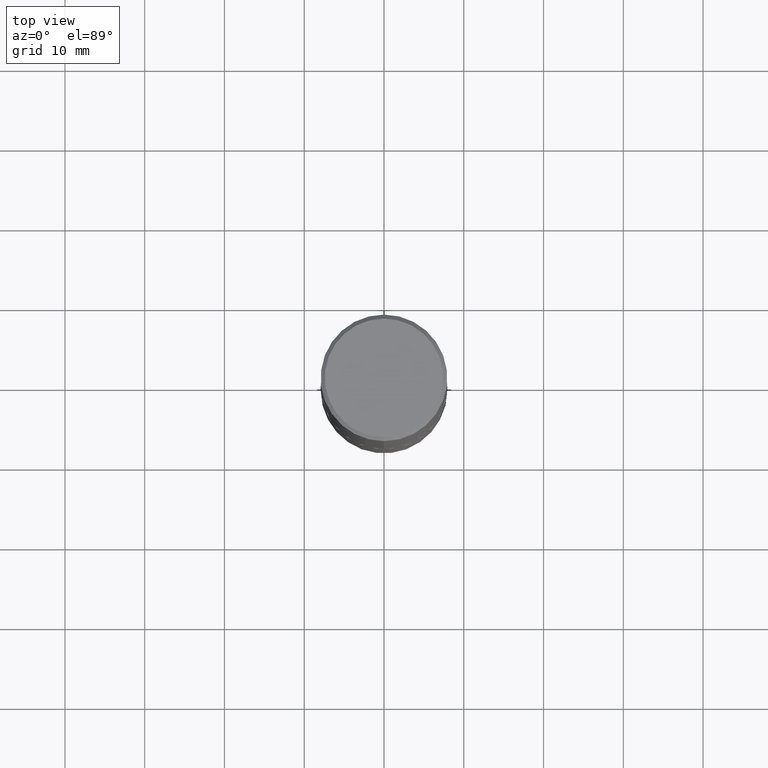
[diagram: clean part render]
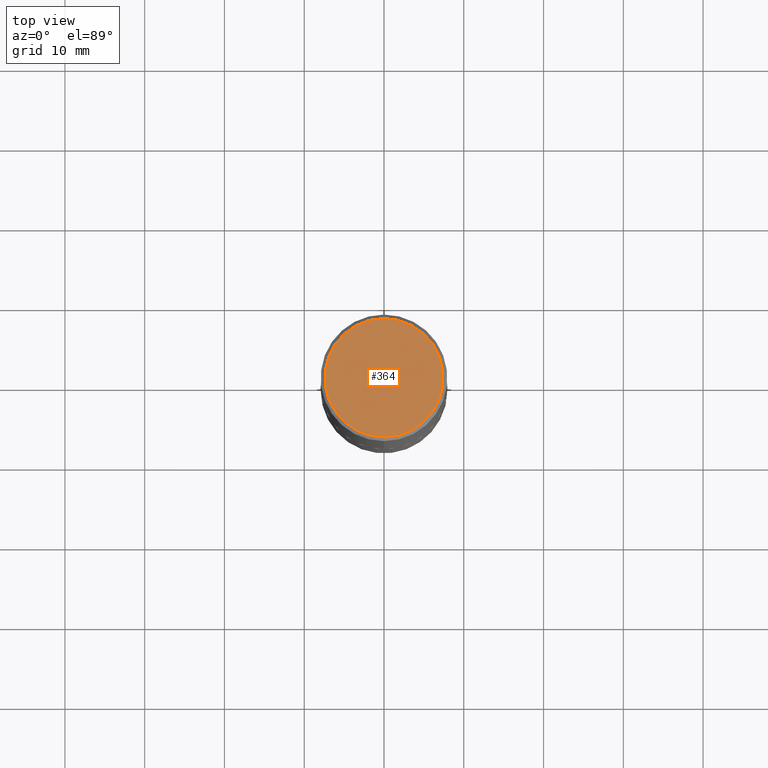
[diagram: same view with one face highlighted and labeled with its STEP entity id]
A machine part, top view. The second image highlights one B-rep face of the part: STEP entity #364.
In plain terms, the highlighted planar face has unit normal (0, -0, -1).
Its self-contained STEP definition (entity closure, byte-faithful):
#10 = VERTEX_POINT ( 'NONE', #189 ) ;
#26 = CIRCLE ( 'NONE', #128, 0.2924999999999999267 ) ;
#27 = PLANE ( 'NONE',  #200 ) ;
#28 = DIRECTION ( 'NONE',  ( -2.446270449397526442E-29, 3.490333340136305154E-15, 1.000000000000000000 ) ) ;
#53 = FACE_OUTER_BOUND ( 'NONE', #359, .T. ) ;
#64 = DIRECTION ( 'NONE',  ( -2.446270449397526442E-29, 3.490333340136305154E-15, 1.000000000000000000 ) ) ;
#86 = CARTESIAN_POINT ( 'NONE',  ( -7.227211954301492276E-46, 1.031177024868314748E-31, 2.954379780895211224E-17 ) ) ;
#111 = DIRECTION ( 'NONE',  ( 6.982962677686265922E-15, 1.000000000000000000, -3.490333340136305154E-15 ) ) ;
#121 = VERTEX_POINT ( 'NONE', #263 ) ;
#128 = AXIS2_PLACEMENT_3D ( 'NONE', #385, #64, #247 ) ;
#152 = CIRCLE ( 'NONE', #212, 0.2924999999999999267 ) ;
#162 = DIRECTION ( 'NONE',  ( -6.982962677686266711E-15, -1.000000000000000000, 3.490333340136305549E-15 ) ) ;
#174 = EDGE_CURVE ( 'NONE', #121, #10, #152, .T. ) ;
#189 = CARTESIAN_POINT ( 'NONE',  ( 2.112346210000095443E-15, 0.2924999999999999267, -9.913787041809170300E-16 ) ) ;
#199 = EDGE_CURVE ( 'NONE', #10, #121, #26, .T. ) ;
#200 = AXIS2_PLACEMENT_3D ( 'NONE', #293, #360, #111 ) ;
#207 = ORIENTED_EDGE ( 'NONE', *, *, #174, .T. ) ;
#212 = AXIS2_PLACEMENT_3D ( 'NONE', #86, #28, #162 ) ;
#240 = ORIENTED_EDGE ( 'NONE', *, *, #199, .T. ) ;
#247 = DIRECTION ( 'NONE',  ( -6.982962677686266711E-15, -1.000000000000000000, 3.490333340136305549E-15 ) ) ;
#263 = CARTESIAN_POINT ( 'NONE',  ( -2.075300644325887493E-15, -0.2924999999999999267, 1.050466299798821304E-15 ) ) ;
#293 = CARTESIAN_POINT ( 'NONE',  ( 2.042516583223232540E-15, 0.2924999999999999267, -1.006150603085393049E-15 ) ) ;
#359 = EDGE_LOOP ( 'NONE', ( #240, #207 ) ) ;
#360 = DIRECTION ( 'NONE',  ( 2.446270449397526161E-29, -3.490333340136305154E-15, -1.000000000000000000 ) ) ;
#364 = ADVANCED_FACE ( 'NONE', ( #53 ), #27, .F. ) ;
#385 = CARTESIAN_POINT ( 'NONE',  ( -7.227211954301492276E-46, 1.031177024868314748E-31, 2.954379780895211224E-17 ) ) ;